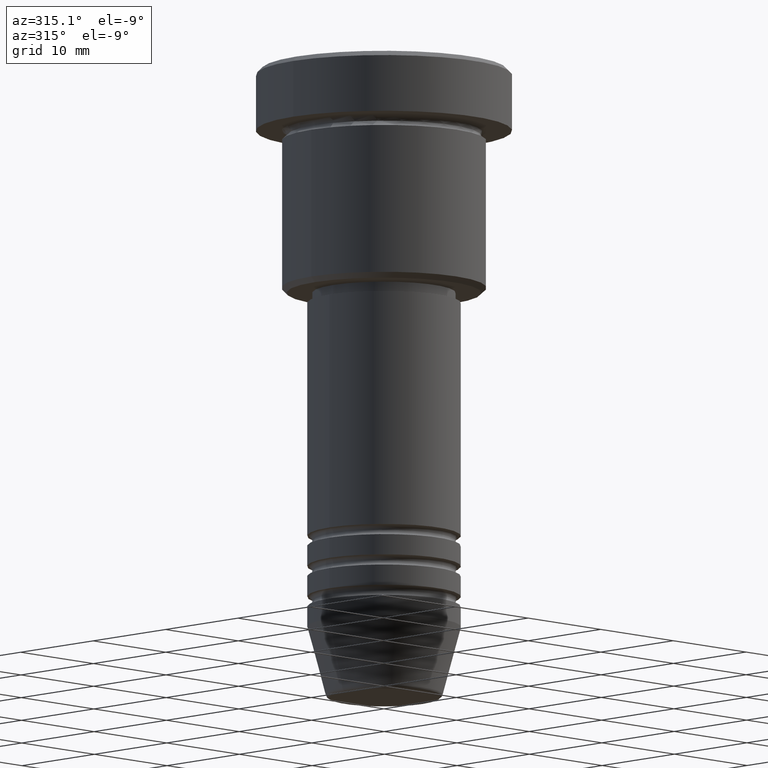
[diagram: clean part render]
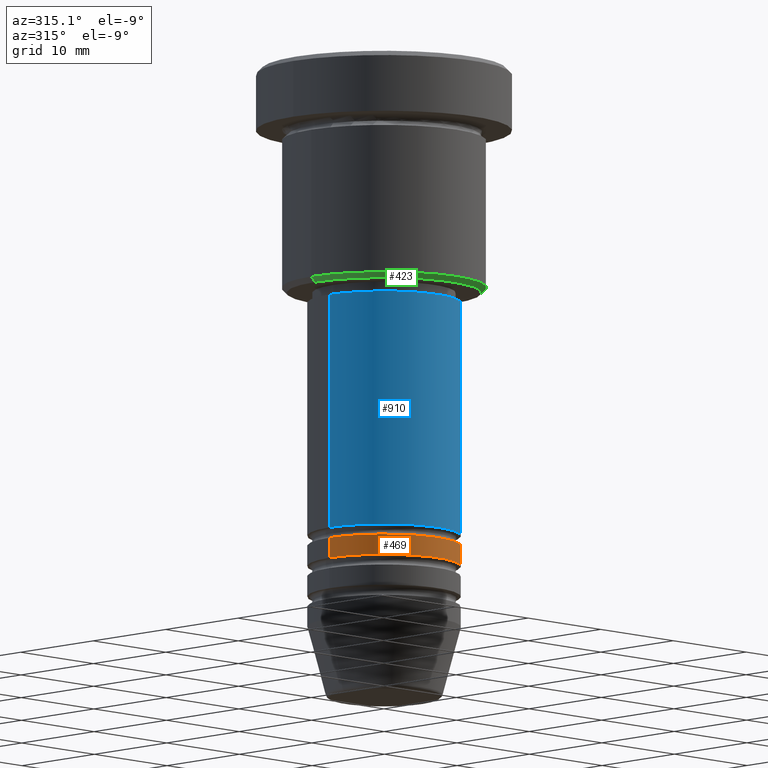
[diagram: same view with three faces highlighted in distinct colors, each labeled with its STEP entity id]
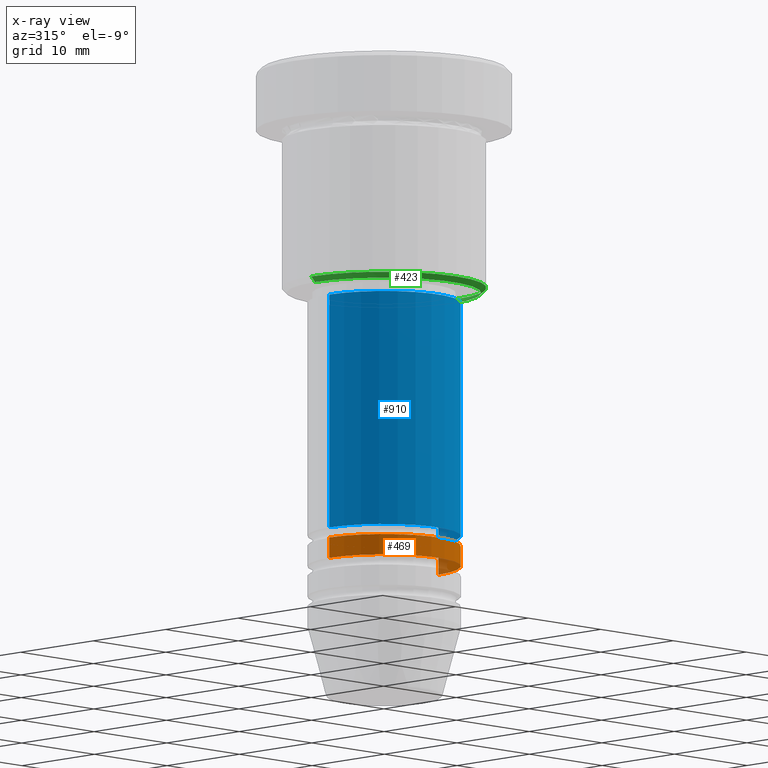
[diagram: x-ray of the same camera — body ghosted, the three highlighted faces saturated]
A machine part, auxiliary view with three faces highlighted in distinct colors.
The next image is the same camera in x-ray (body ghosted, the three faces saturated) — at least one of them is partly hidden behind the body in this view.
Their STEP definitions:

[orange] entity #469 — the highlighted cylindrical surface (partial cylindrical patch) has radius 7.5 mm, axis along (-0, -0, 1).
#10 = CYLINDRICAL_SURFACE ( 'NONE', #318, 7.500000000000000000 ) ;
#29 = DIRECTION ( 'NONE',  ( -0.000000000000000000, -0.000000000000000000, 1.000000000000000000 ) ) ;
#93 = VERTEX_POINT ( 'NONE', #347 ) ;
#148 = DIRECTION ( 'NONE',  ( 1.000000000000000000, 0.000000000000000000, 0.000000000000000000 ) ) ;
#149 = VERTEX_POINT ( 'NONE', #806 ) ;
#193 = AXIS2_PLACEMENT_3D ( 'NONE', #1167, #349, #906 ) ;
#199 = CARTESIAN_POINT ( 'NONE',  ( 0.000000000000000000, 0.000000000000000000, 0.000000000000000000 ) ) ;
#210 = LINE ( 'NONE', #381, #611 ) ;
#318 = AXIS2_PLACEMENT_3D ( 'NONE', #199, #565, #934 ) ;
#337 = EDGE_CURVE ( 'NONE', #1134, #149, #1039, .T. ) ;
#347 = CARTESIAN_POINT ( 'NONE',  ( 7.500000000000000000, 0.000000000000000000, -46.99999999999998579 ) ) ;
#349 = DIRECTION ( 'NONE',  ( -0.000000000000000000, -0.000000000000000000, 1.000000000000000000 ) ) ;
#355 = CARTESIAN_POINT ( 'NONE',  ( -7.500000000000000000, 9.184850993605147944E-16, -48.99999999999997868 ) ) ;
#360 = CIRCLE ( 'NONE', #193, 7.500000000000000000 ) ;
#374 = ORIENTED_EDGE ( 'NONE', *, *, #337, .F. ) ;
#377 = EDGE_CURVE ( 'NONE', #402, #93, #210, .T. ) ;
#381 = CARTESIAN_POINT ( 'NONE',  ( 7.500000000000000000, 0.000000000000000000, 0.000000000000000000 ) ) ;
#402 = VERTEX_POINT ( 'NONE', #477 ) ;
#469 = ADVANCED_FACE ( 'NONE', ( #940 ), #10, .T. ) ;
#477 = CARTESIAN_POINT ( 'NONE',  ( 7.500000000000000000, 0.000000000000000000, -48.99999999999997868 ) ) ;
#492 = CARTESIAN_POINT ( 'NONE',  ( -7.500000000000000000, 9.184850993605147944E-16, 0.000000000000000000 ) ) ;
#506 = CIRCLE ( 'NONE', #668, 7.500000000000000000 ) ;
#517 = DIRECTION ( 'NONE',  ( -0.000000000000000000, -0.000000000000000000, 1.000000000000000000 ) ) ;
#565 = DIRECTION ( 'NONE',  ( -0.000000000000000000, -0.000000000000000000, 1.000000000000000000 ) ) ;
#599 = EDGE_CURVE ( 'NONE', #1134, #402, #506, .T. ) ;
#602 = CARTESIAN_POINT ( 'NONE',  ( 0.000000000000000000, 0.000000000000000000, -48.99999999999997868 ) ) ;
#611 = VECTOR ( 'NONE', #1120, 1000.000000000000000 ) ;
#668 = AXIS2_PLACEMENT_3D ( 'NONE', #602, #517, #148 ) ;
#796 = EDGE_CURVE ( 'NONE', #149, #93, #360, .T. ) ;
#806 = CARTESIAN_POINT ( 'NONE',  ( -7.500000000000000000, 9.184850993605147944E-16, -46.99999999999998579 ) ) ;
#838 = ORIENTED_EDGE ( 'NONE', *, *, #599, .T. ) ;
#841 = ORIENTED_EDGE ( 'NONE', *, *, #796, .F. ) ;
#906 = DIRECTION ( 'NONE',  ( 1.000000000000000000, 0.000000000000000000, 0.000000000000000000 ) ) ;
#934 = DIRECTION ( 'NONE',  ( 1.000000000000000000, 0.000000000000000000, 0.000000000000000000 ) ) ;
#940 = FACE_OUTER_BOUND ( 'NONE', #943, .T. ) ;
#943 = EDGE_LOOP ( 'NONE', ( #374, #838, #948, #841 ) ) ;
#948 = ORIENTED_EDGE ( 'NONE', *, *, #377, .T. ) ;
#1003 = VECTOR ( 'NONE', #29, 1000.000000000000000 ) ;
#1039 = LINE ( 'NONE', #492, #1003 ) ;
#1120 = DIRECTION ( 'NONE',  ( -0.000000000000000000, -0.000000000000000000, 1.000000000000000000 ) ) ;
#1134 = VERTEX_POINT ( 'NONE', #355 ) ;
#1167 = CARTESIAN_POINT ( 'NONE',  ( 0.000000000000000000, 0.000000000000000000, -46.99999999999998579 ) ) ;

[blue] entity #910 — the highlighted cylindrical surface (partial cylindrical patch) has radius 7.5 mm, axis along (-0, -0, 1).
#26 = ORIENTED_EDGE ( 'NONE', *, *, #1125, .F. ) ;
#48 = DIRECTION ( 'NONE',  ( -0.000000000000000000, -0.000000000000000000, 1.000000000000000000 ) ) ;
#80 = DIRECTION ( 'NONE',  ( 1.000000000000000000, 0.000000000000000000, 0.000000000000000000 ) ) ;
#108 = ORIENTED_EDGE ( 'NONE', *, *, #139, .F. ) ;
#114 = AXIS2_PLACEMENT_3D ( 'NONE', #416, #48, #397 ) ;
#134 = AXIS2_PLACEMENT_3D ( 'NONE', #613, #524, #80 ) ;
#139 = EDGE_CURVE ( 'NONE', #955, #518, #531, .T. ) ;
#145 = VECTOR ( 'NONE', #969, 1000.000000000000000 ) ;
#191 = VERTEX_POINT ( 'NONE', #459 ) ;
#195 = CARTESIAN_POINT ( 'NONE',  ( -7.500000000000000000, 9.184850993605147944E-16, 0.000000000000000000 ) ) ;
#224 = CARTESIAN_POINT ( 'NONE',  ( 7.500000000000000000, 0.000000000000000000, 0.000000000000000000 ) ) ;
#241 = LINE ( 'NONE', #224, #145 ) ;
#287 = CYLINDRICAL_SURFACE ( 'NONE', #961, 7.500000000000000000 ) ;
#339 = VECTOR ( 'NONE', #561, 1000.000000000000000 ) ;
#395 = ORIENTED_EDGE ( 'NONE', *, *, #982, .T. ) ;
#397 = DIRECTION ( 'NONE',  ( 1.000000000000000000, 0.000000000000000000, 0.000000000000000000 ) ) ;
#406 = CARTESIAN_POINT ( 'NONE',  ( 7.500000000000000000, 0.000000000000000000, -45.99999999999997868 ) ) ;
#416 = CARTESIAN_POINT ( 'NONE',  ( 0.000000000000000000, 0.000000000000000000, -45.99999999999997868 ) ) ;
#443 = CIRCLE ( 'NONE', #134, 7.500000000000000000 ) ;
#459 = CARTESIAN_POINT ( 'NONE',  ( 7.500000000000000000, 0.000000000000000000, -23.00000000000000711 ) ) ;
#489 = VERTEX_POINT ( 'NONE', #406 ) ;
#497 = CARTESIAN_POINT ( 'NONE',  ( -7.500000000000000000, 9.184850993605147944E-16, -23.00000000000000711 ) ) ;
#514 = EDGE_CURVE ( 'NONE', #489, #191, #241, .T. ) ;
#518 = VERTEX_POINT ( 'NONE', #497 ) ;
#524 = DIRECTION ( 'NONE',  ( -0.000000000000000000, -0.000000000000000000, 1.000000000000000000 ) ) ;
#531 = LINE ( 'NONE', #195, #339 ) ;
#561 = DIRECTION ( 'NONE',  ( -0.000000000000000000, -0.000000000000000000, 1.000000000000000000 ) ) ;
#613 = CARTESIAN_POINT ( 'NONE',  ( 0.000000000000000000, 0.000000000000000000, -23.00000000000000711 ) ) ;
#633 = CIRCLE ( 'NONE', #114, 7.500000000000000000 ) ;
#655 = CARTESIAN_POINT ( 'NONE',  ( 0.000000000000000000, 0.000000000000000000, 0.000000000000000000 ) ) ;
#744 = EDGE_LOOP ( 'NONE', ( #108, #395, #966, #26 ) ) ;
#858 = FACE_OUTER_BOUND ( 'NONE', #744, .T. ) ;
#910 = ADVANCED_FACE ( 'NONE', ( #858 ), #287, .T. ) ;
#955 = VERTEX_POINT ( 'NONE', #977 ) ;
#961 = AXIS2_PLACEMENT_3D ( 'NONE', #655, #1023, #1018 ) ;
#966 = ORIENTED_EDGE ( 'NONE', *, *, #514, .T. ) ;
#969 = DIRECTION ( 'NONE',  ( -0.000000000000000000, -0.000000000000000000, 1.000000000000000000 ) ) ;
#977 = CARTESIAN_POINT ( 'NONE',  ( -7.500000000000000000, 9.184850993605147944E-16, -45.99999999999997868 ) ) ;
#982 = EDGE_CURVE ( 'NONE', #955, #489, #633, .T. ) ;
#1018 = DIRECTION ( 'NONE',  ( 1.000000000000000000, 0.000000000000000000, 0.000000000000000000 ) ) ;
#1023 = DIRECTION ( 'NONE',  ( -0.000000000000000000, -0.000000000000000000, 1.000000000000000000 ) ) ;
#1125 = EDGE_CURVE ( 'NONE', #518, #191, #443, .T. ) ;

[green] entity #423 — the highlighted conical surface has half-angle 45 deg.
#11 = ORIENTED_EDGE ( 'NONE', *, *, #27, .F. ) ;
#27 = EDGE_CURVE ( 'NONE', #1107, #380, #775, .T. ) ;
#55 = AXIS2_PLACEMENT_3D ( 'NONE', #859, #947, #842 ) ;
#78 = LINE ( 'NONE', #543, #327 ) ;
#117 = CONICAL_SURFACE ( 'NONE', #55, 10.00000000000000000, 0.7853981633974533860 ) ;
#119 = CARTESIAN_POINT ( 'NONE',  ( 10.00000000000000000, 0.000000000000000000, -21.50000000000000355 ) ) ;
#133 = CIRCLE ( 'NONE', #422, 9.500000000000001776 ) ;
#157 = EDGE_CURVE ( 'NONE', #752, #1107, #78, .T. ) ;
#177 = DIRECTION ( 'NONE',  ( -1.000000000000000000, 0.000000000000000000, 0.000000000000000000 ) ) ;
#220 = EDGE_LOOP ( 'NONE', ( #773, #666, #484, #11 ) ) ;
#307 = DIRECTION ( 'NONE',  ( 0.000000000000000000, 0.000000000000000000, -1.000000000000000000 ) ) ;
#309 = VERTEX_POINT ( 'NONE', #350 ) ;
#311 = VECTOR ( 'NONE', #862, 1000.000000000000000 ) ;
#327 = VECTOR ( 'NONE', #447, 1000.000000000000000 ) ;
#350 = CARTESIAN_POINT ( 'NONE',  ( 9.500000000000001776, 0.000000000000000000, -22.00000000000000000 ) ) ;
#380 = VERTEX_POINT ( 'NONE', #119 ) ;
#422 = AXIS2_PLACEMENT_3D ( 'NONE', #1045, #307, #1115 ) ;
#423 = ADVANCED_FACE ( 'NONE', ( #671 ), #117, .T. ) ;
#434 = EDGE_CURVE ( 'NONE', #309, #752, #133, .T. ) ;
#447 = DIRECTION ( 'NONE',  ( -0.7071067811865512365, 8.659560562354979697E-17, 0.7071067811865439090 ) ) ;
#484 = ORIENTED_EDGE ( 'NONE', *, *, #1064, .T. ) ;
#521 = DIRECTION ( 'NONE',  ( -0.000000000000000000, -0.000000000000000000, 1.000000000000000000 ) ) ;
#543 = CARTESIAN_POINT ( 'NONE',  ( -10.00000000000000000, 1.224646799147353256E-15, -21.50000000000000355 ) ) ;
#545 = CARTESIAN_POINT ( 'NONE',  ( -9.500000000000001776, 1.194030629168669469E-15, -22.00000000000000000 ) ) ;
#666 = ORIENTED_EDGE ( 'NONE', *, *, #434, .F. ) ;
#671 = FACE_OUTER_BOUND ( 'NONE', #220, .T. ) ;
#701 = CARTESIAN_POINT ( 'NONE',  ( 10.00000000000000000, 0.000000000000000000, -21.50000000000000355 ) ) ;
#752 = VERTEX_POINT ( 'NONE', #545 ) ;
#773 = ORIENTED_EDGE ( 'NONE', *, *, #157, .F. ) ;
#775 = CIRCLE ( 'NONE', #832, 10.00000000000000000 ) ;
#780 = LINE ( 'NONE', #701, #311 ) ;
#832 = AXIS2_PLACEMENT_3D ( 'NONE', #985, #521, #177 ) ;
#842 = DIRECTION ( 'NONE',  ( 1.000000000000000000, 0.000000000000000000, 0.000000000000000000 ) ) ;
#859 = CARTESIAN_POINT ( 'NONE',  ( 0.000000000000000000, 0.000000000000000000, -21.50000000000000355 ) ) ;
#862 = DIRECTION ( 'NONE',  ( 0.7071067811865512365, 0.000000000000000000, 0.7071067811865439090 ) ) ;
#947 = DIRECTION ( 'NONE',  ( -0.000000000000000000, -0.000000000000000000, 1.000000000000000000 ) ) ;
#985 = CARTESIAN_POINT ( 'NONE',  ( 0.000000000000000000, 0.000000000000000000, -21.50000000000000355 ) ) ;
#1045 = CARTESIAN_POINT ( 'NONE',  ( 0.000000000000000000, 0.000000000000000000, -22.00000000000000000 ) ) ;
#1050 = CARTESIAN_POINT ( 'NONE',  ( -10.00000000000000000, 1.224646799147353256E-15, -21.50000000000000355 ) ) ;
#1064 = EDGE_CURVE ( 'NONE', #309, #380, #780, .T. ) ;
#1107 = VERTEX_POINT ( 'NONE', #1050 ) ;
#1115 = DIRECTION ( 'NONE',  ( -1.000000000000000000, 0.000000000000000000, 0.000000000000000000 ) ) ;